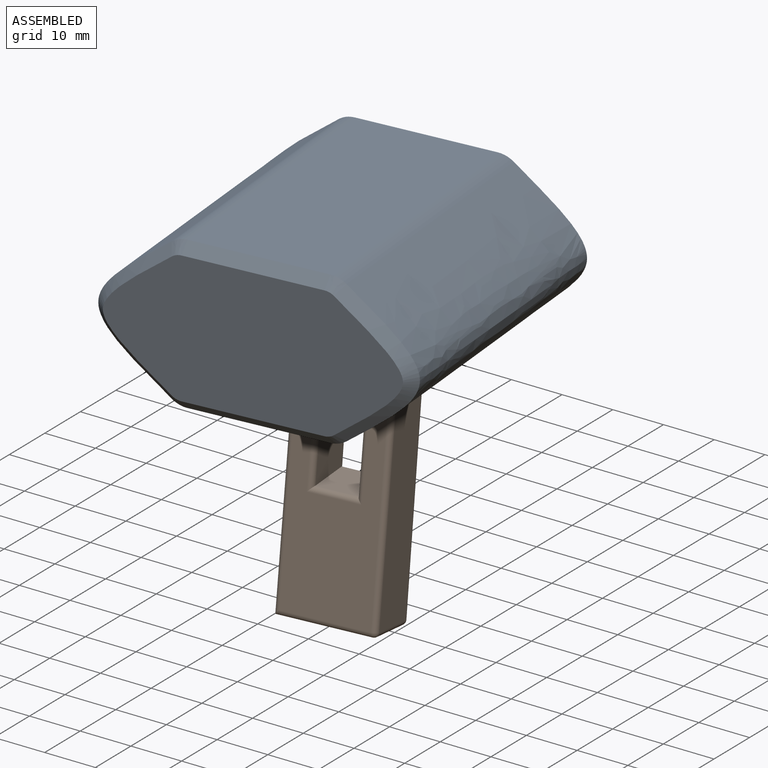
[diagram: assembled view]
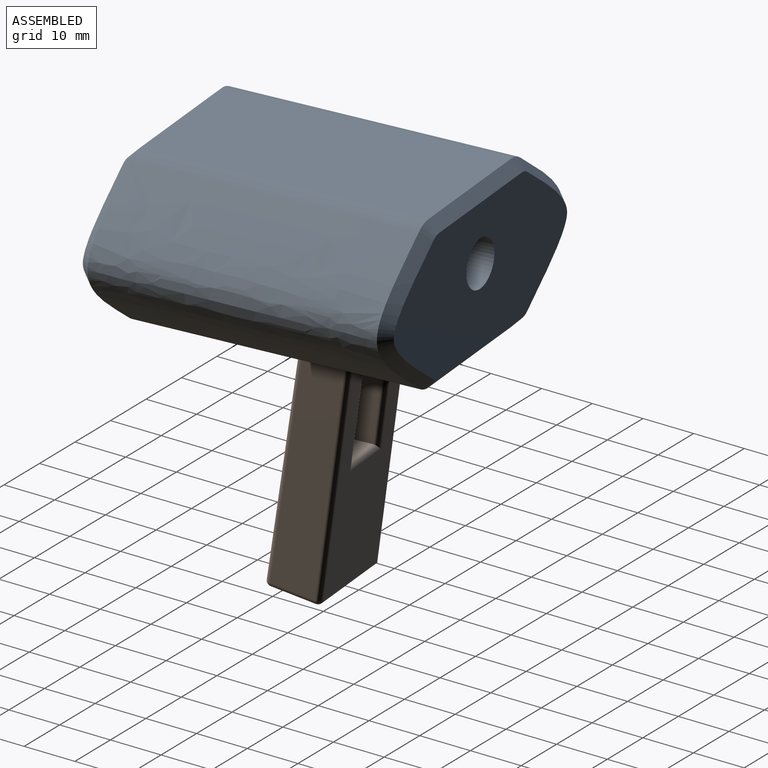
[diagram: assembled view, second angle]
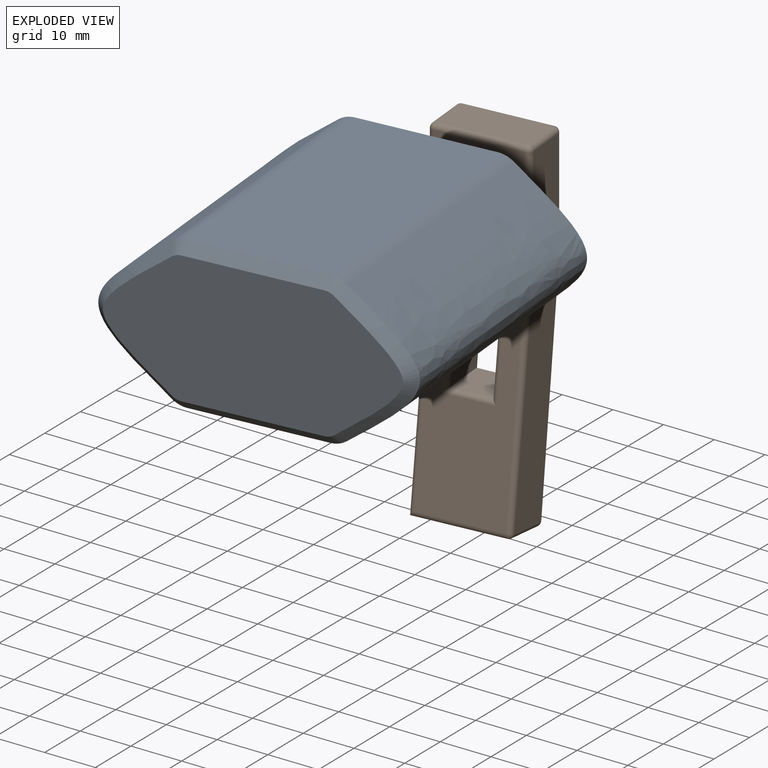
[diagram: exploded view]
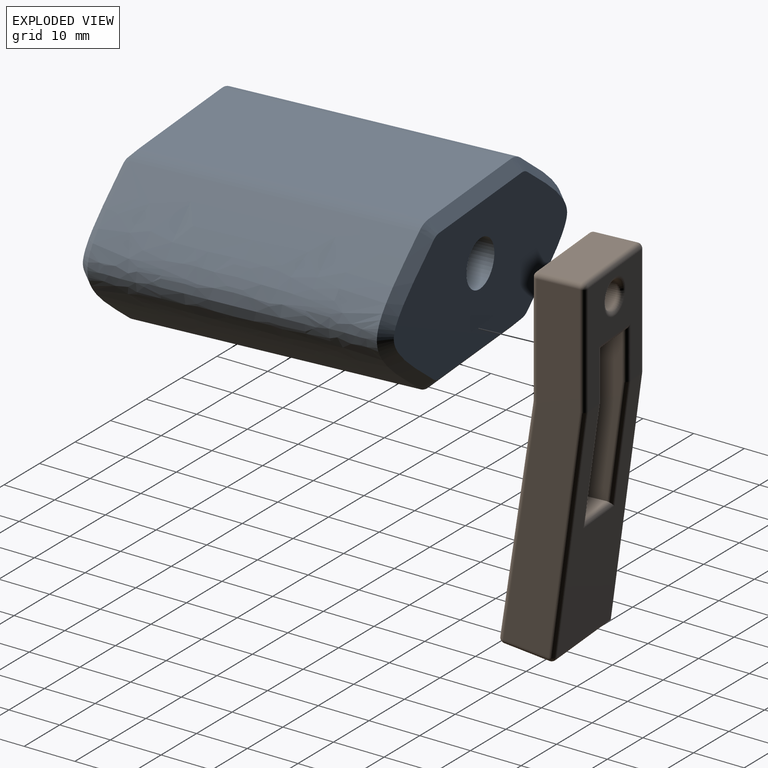
[diagram: exploded view, second angle]
ASSEMBLY  parts=2 mates=2
PART A: 42 faces, bbox 60.8x58.8x30.8 mm
  f0: cylinder r=2.43mm len=12.5mm, axis (0,-1,0), area 191.2mm2, adj f6,f40
  f1: plane 54x26.68mm, normal (0,0,-1), area 1189.4mm2, adj f6,f7,f8,f9,f13,f14,f24,f27
  f2: cylinder r=2.43mm len=4.87mm, axis (0,-1,0), area 61.2mm2, adj f8,f34
  f3: plane 54x26.68mm, normal (0,0,1), area 1440.9mm2, adj f15,f16,f17,f30
  f4: plane 56.81x26.77mm, normal (0,-1,0), area 1103.5mm2, adj f17,f18,f19,f20,f21,f22,f23,f24
  f5: plane 56.81x26.76mm, normal (0,1,0), area 1167.1mm2, adj f25,f26,f27,f28,f29,f30,f31,f32
  f6: plane 23x19.5mm, normal (0,1,0), area 429.9mm2, adj f0,f1,f7,f9,f10
  f7: plane 23x10.5mm, normal (1,0,0), area 241.5mm2, adj f1,f6,f8,f10
  f8: plane 23x19.5mm, normal (0,-1,0), area 429.9mm2, adj f1,f2,f7,f9,f10
  f9: plane 23x10.5mm, normal (-1,0,0), area 241.5mm2, adj f1,f6,f8,f10
  f10: plane 19.5x10.5mm, normal (0,0,-1), area 204.8mm2, adj f6,f7,f8,f9
  f11: extruded ~54x28.03mm, area 2170.7mm2, adj f13,f16,f20,f26
  f12: extruded ~54x28.03mm, area 2170.7mm2, adj f14,f15,f21,f31
  f13: cylinder r=5mm len=54mm, axis (0,-1,0), area 172.3mm2, adj f1,f11,f22,f25
  f14: cylinder r=5mm len=54mm, axis (0,-1,0), area 172.3mm2, adj f1,f12,f23,f29
  f15: cylinder r=5mm len=54mm, axis (0,-1,0), area 172.3mm2, adj f3,f12,f19,f32
  f16: cylinder r=5mm len=54mm, axis (0,-1,0), area 172.3mm2, adj f3,f11,f18,f28
  f17: plane 26.68x2mm, normal (0,-0.71,0.71), area 75.5mm2, adj f3,f4,f18,f19
  f18: cone r=3mm half-angle=45deg, axis (0,1,0), area 7.2mm2, adj f4,f16,f17,f20
  f19: cone r=3mm half-angle=45deg, axis (0,1,0), area 7.2mm2, adj f4,f15,f17,f21
  f20: bspline ~28.03x14.88mm, area 108.5mm2, adj f4,f11,f18,f22
  f21: bspline ~28.03x14.88mm, area 108.4mm2, adj f4,f12,f19,f23
  f22: cone r=3mm half-angle=45deg, axis (0,1,0), area 7.2mm2, adj f4,f13,f20,f24
  f23: cone r=3mm half-angle=45deg, axis (0,1,0), area 7.2mm2, adj f4,f14,f21,f24
  f24: plane 26.68x2mm, normal (0,-0.71,-0.71), area 75.5mm2, adj f1,f4,f22,f23
  f25: cone r=3mm half-angle=45deg, axis (0,-1,0), area 7.2mm2, adj f5,f13,f26,f27
  f26: bspline ~28.03x14.88mm, area 108.4mm2, adj f5,f11,f25,f28
  f27: plane 26.68x2mm, normal (0,0.71,-0.71), area 75.5mm2, adj f1,f5,f25,f29
  f28: cone r=3mm half-angle=45deg, axis (0,-1,0), area 7.2mm2, adj f5,f16,f26,f30
  f29: cone r=3mm half-angle=45deg, axis (0,-1,0), area 7.2mm2, adj f5,f14,f27,f31
  f30: plane 26.68x2mm, normal (0,0.71,0.71), area 75.5mm2, adj f3,f5,f28,f32
  f31: bspline ~28.03x14.88mm, area 108.5mm2, adj f5,f12,f29,f32
  f32: cone r=3mm half-angle=45deg, axis (0,-1,0), area 7.2mm2, adj f5,f15,f30,f31
  f33: plane 21.2x8.5mm, normal (0,-1,0), area 161.6mm2, adj f1,f35,f36,f37,f39
  f34: plane 21.2x8.5mm, normal (0,1,0), area 161.6mm2, adj f1,f2,f35,f36,f37
  f35: plane 21.2x5.5mm, normal (1,0,0), area 116.6mm2, adj f1,f33,f34,f37
  f36: plane 21.2x5.5mm, normal (-1,0,0), area 116.6mm2, adj f1,f33,f34,f37
  f37: plane 8.5x5.5mm, normal (0,0,-1), area 46.7mm2, adj f33,f34,f35,f36
  f38: plane 4.87x4.87mm, normal (0,-1,0), area 18.6mm2, adj f39
  f39: cylinder r=2.43mm len=4.87mm, axis (0,-1,0), area 45.9mm2, adj f33,f38
  f40: plane 9x9mm, normal (0,-1,0), area 45mm2, adj f0,f41
  f41: cylinder r=4.5mm len=9mm, axis (0,-1,0), area 155.5mm2, adj f4,f40
PART B: 60 faces, bbox 19.2x16.4x69 mm
  f0: plane 44.98x17.2mm, normal (0,0.99,-0.13), area 543.8mm2, adj f40,f43,f46,f47,f53,f54,f56,f57
  f1: plane 43.49x17.2mm, normal (0,-0.99,0.14), area 521.9mm2, adj f14,f15,f18,f21,f22,f23,f27,f28
  f2: plane 31.21x11.13mm, normal (1,0,0), area 252.6mm2, adj f6,f12,f17,f18,f20,f52,f56,f57
  f3: plane 31.21x11.13mm, normal (-1,0,0), area 252.6mm2, adj f6,f12,f15,f16,f19,f48,f54,f56
  f4: plane 67.9x14.39mm, normal (-1,0,0), area 552.1mm2, adj f11,f23,f26,f31,f38,f43,f45,f46
  f5: plane 66.91x14.25mm, normal (1,0,0), area 543.6mm2, adj f24,f25,f28,f33,f35,f40,f41
  f6: plane 8.2x8mm, normal (0,0,-1), area 65.6mm2, adj f2,f3,f13,f49
  f7: plane 17.2x8mm, normal (0,0,1), area 137.6mm2, adj f30,f33,f37,f38
  f8: cylinder r=2.5mm len=8mm, axis (0,1,0), area 125.7mm2, adj f58,f59
  f9: plane 21.93x17.2mm, normal (0,-1,0), area 234.4mm2, adj f13,f16,f17,f21,f22,f25,f30,f31
  f10: plane 21.94x17.2mm, normal (0,1,0), area 234.4mm2, adj f37,f41,f45,f47,f48,f49,f52,f53
  f11: plane 18.2x8.45mm, normal (0,-0.14,-0.99), area 155.3mm2, adj f4,f27,f35,f43
  f12: plane 8.31x8.22mm, normal (0,0,1), area 68.1mm2, adj f2,f3,f14,f15,f18,f56
  f13: cylinder r=1mm len=10.2mm, axis (-1,0,0), area 14mm2, adj f6,f9,f16,f17
  f14: cylinder r=1mm len=10.2mm, axis (-1,0,0), area 12.9mm2, adj f1,f12,f15,f18
  f15: cylinder r=1mm len=22.83mm, axis (0,-0.14,-0.99), area 35mm2, adj f1,f3,f12,f14,f19
  f16: cylinder r=1mm len=10.23mm, axis (0,0,1), area 15.1mm2, adj f3,f9,f13,f19
  f17: cylinder r=1mm len=10.23mm, axis (0,0,-1), area 15.1mm2, adj f2,f9,f13,f20
  f18: cylinder r=1mm len=22.83mm, axis (0,0.14,0.99), area 35mm2, adj f1,f2,f12,f14,f20
  f19: torus R=2mm, axis (1,0,0), area 0.3mm2, adj f3,f15,f16,f21
  f20: torus R=2mm, axis (1,0,0), area 0.3mm2, adj f2,f17,f18,f22
  f21: cylinder r=1mm len=3.5mm, axis (-1,0,0), area 0.5mm2, adj f1,f9,f19,f24
  f22: cylinder r=1mm len=3.5mm, axis (-1,0,0), area 0.5mm2, adj f1,f9,f20,f26
  f23: cylinder r=1mm len=44.62mm, axis (0,-0.14,-0.99), area 70mm2, adj f1,f4,f26,f27
  f24: torus R=2mm, axis (1,0,0), area 0.3mm2, adj f5,f21,f25,f28
  f25: cylinder r=1mm len=21.93mm, axis (0,0,-1), area 34.4mm2, adj f5,f9,f24,f29
  f26: torus R=2mm, axis (-1,0,0), area 0.3mm2, adj f4,f22,f23,f31
  f27: cylinder r=1mm len=18.2mm, axis (1,0,0), area 28mm2, adj f1,f11,f23,f32
  f28: cylinder r=1mm len=43.63mm, axis (0,-0.14,-0.99), area 69mm2, adj f1,f5,f24,f32
  f29: sphere r=1mm, area 1.6mm2, adj f25,f30,f33
  f30: cylinder r=1mm len=17.2mm, axis (1,0,0), area 27mm2, adj f7,f9,f29,f34
  f31: cylinder r=1mm len=21.93mm, axis (0,0,1), area 34.4mm2, adj f4,f9,f26,f34
  f32: sphere r=1mm, area 1.6mm2, adj f27,f28,f35
  f33: cylinder r=1mm len=8mm, axis (0,1,0), area 12.6mm2, adj f5,f7,f29,f36
  f34: sphere r=1mm, area 1.6mm2, adj f30,f31,f38
  f35: cylinder r=1mm len=8.59mm, axis (0,0.99,-0.14), area 13.4mm2, adj f5,f11,f32,f39
  f36: sphere r=1mm, area 1.6mm2, adj f33,f37,f41
  f37: cylinder r=1mm len=17.2mm, axis (-1,0,0), area 27mm2, adj f7,f10,f36,f42
  f38: cylinder r=1mm len=8mm, axis (0,1,0), area 12.6mm2, adj f4,f7,f34,f42
  f39: sphere r=1mm, area 1.6mm2, adj f35,f40,f43
  f40: cylinder r=1mm len=45.1mm, axis (0,0.13,0.99), area 71.2mm2, adj f0,f5,f39,f44
  f41: cylinder r=1mm len=21.94mm, axis (0,0,1), area 34.5mm2, adj f5,f10,f36,f44
  f42: sphere r=1mm, area 1.6mm2, adj f37,f38,f45
  f43: cylinder r=1mm len=18.2mm, axis (1,0,0), area 28.3mm2, adj f0,f4,f11,f39,f46
  f44: sphere r=1mm, area 0.1mm2, adj f40,f41,f47
  f45: cylinder r=1mm len=21.94mm, axis (0,0,-1), area 34.5mm2, adj f4,f10,f42,f50
  f46: cylinder r=1mm len=46.1mm, axis (0,0.13,0.99), area 72.2mm2, adj f0,f4,f43,f50
  f47: cylinder r=1mm len=3.5mm, axis (1,0,0), area 0.4mm2, adj f0,f10,f44,f51
  f48: cylinder r=1mm len=10.24mm, axis (0,0,-1), area 15.1mm2, adj f3,f10,f49,f51
  f49: cylinder r=1mm len=10.2mm, axis (1,0,0), area 14mm2, adj f6,f10,f48,f52
  f50: sphere r=1mm, area 0.1mm2, adj f45,f46,f53
  f51: sphere r=1mm, area 0.1mm2, adj f47,f48,f54
  f52: cylinder r=1mm len=10.24mm, axis (0,0,1), area 15.1mm2, adj f2,f10,f49,f55
  f53: cylinder r=1mm len=3.5mm, axis (1,0,0), area 0.4mm2, adj f0,f10,f50,f55
  f54: cylinder r=1mm len=23.09mm, axis (0,0.13,0.99), area 35.4mm2, adj f0,f3,f51,f56
  f55: sphere r=1mm, area 0.1mm2, adj f52,f53,f57
  f56: cylinder r=1mm len=10.2mm, axis (1,0,0), area 15.1mm2, adj f0,f2,f3,f12,f54,f57
  f57: cylinder r=1mm len=23.09mm, axis (0,-0.13,-0.99), area 35.4mm2, adj f0,f2,f55,f56
  f58: torus R=3.5mm, axis (0,-1,0), area 28.3mm2, adj f8,f10
  f59: torus R=3.5mm, axis (0,-1,0), area 28.3mm2, adj f8,f9
PLACE A rot(axis=(0,0,-1),175deg) t=(70.45,17.82,47.67)mm
PLACE B rot(axis=(0,0,1),5deg) t=(42.5,55.03,70.67)mm
MATE cylindrical B.f8 <-> A.f0  axis (-0.09,1,0) through (52.5,50.88,64.87)mm
MATE parallel A.f8 <-> B.f9  axis (-0.09,1,0) through (43.22,45.05,70.67)mm
